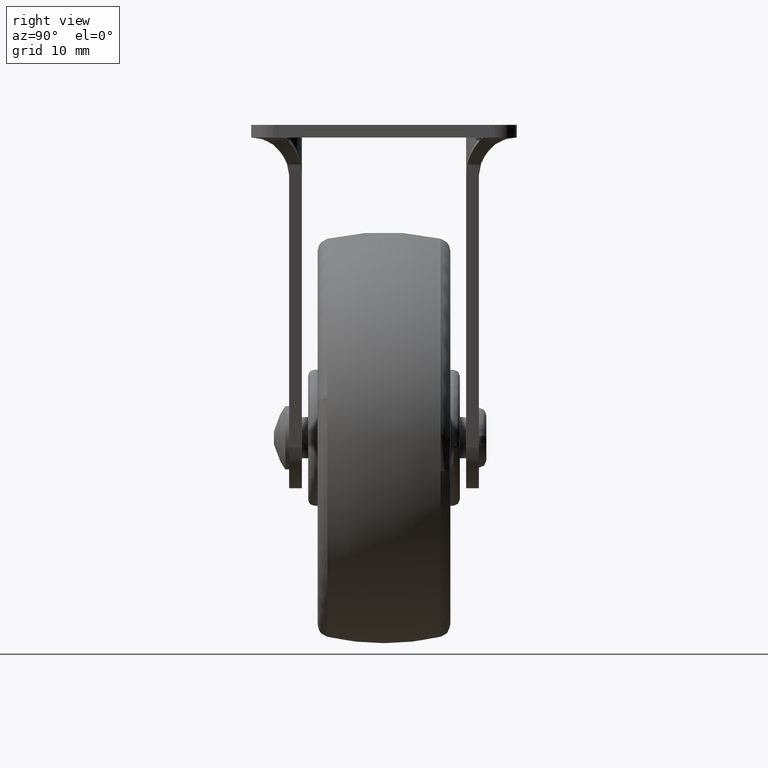
[diagram: clean part render]
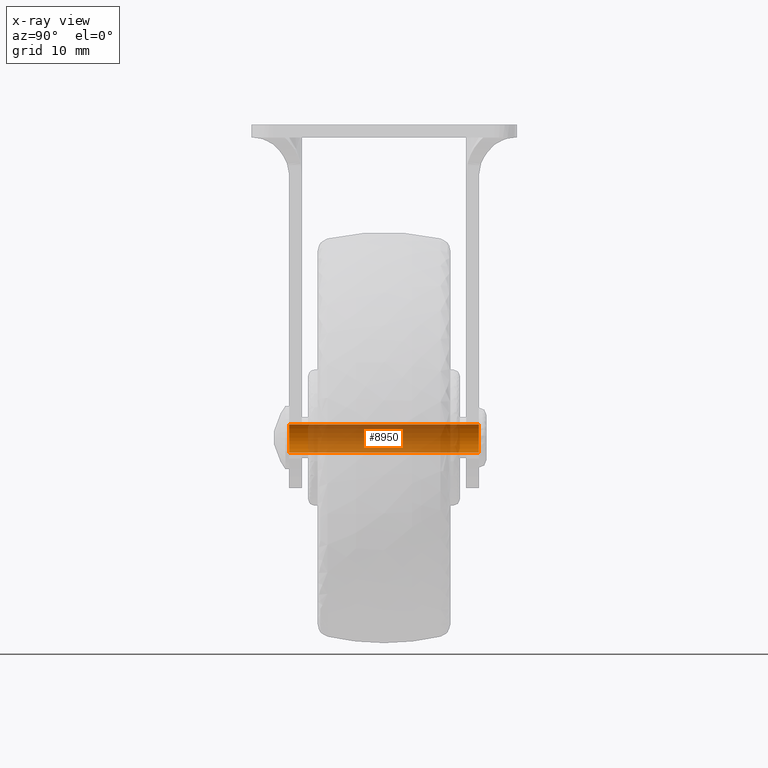
[diagram: x-ray — body ghosted, one internal face saturated and labeled with its STEP entity id]
A machine part, right view, then the same camera in x-ray: the body is ghosted and one INTERNAL B-rep face — a face not visible from any outside direction — is saturated and labeled: STEP entity #8950.
In plain terms, the highlighted face is a freeform B-spline surface patch.
Its self-contained STEP definition (entity closure, byte-faithful):
#8773=CARTESIAN_POINT('',(-2.481556180200195,15.000000000000581,2.098661789956101));
#8774=VERTEX_POINT('',#8773);
#8786=CARTESIAN_POINT('',(-2.481556179435675,-15.0,2.098661790860105));
#8787=VERTEX_POINT('',#8786);
#8788=CARTESIAN_POINT('',(-2.481556179435675,-15.0,2.098661790860105));
#8789=CARTESIAN_POINT('',(-2.481556180200195,15.000000000000581,2.098661789956101));
#8790=QUASI_UNIFORM_CURVE('',1,(#8788,#8789),.UNSPECIFIED.,.F.,.U.);
#8791=EDGE_CURVE('',#8787,#8774,#8790,.T.);
#8833=CARTESIAN_POINT('',(-2.237152049560076,-15.0,-2.357466498763380));
#8834=VERTEX_POINT('',#8833);
#8844=CARTESIAN_POINT('',(-2.237152048761399,14.999999999999520,-2.357466499521295));
#8845=VERTEX_POINT('',#8844);
#8846=CARTESIAN_POINT('',(-2.237152049560076,-15.0,-2.357466498763380));
#8847=CARTESIAN_POINT('',(-2.237152048761399,14.999999999999520,-2.357466499521295));
#8848=QUASI_UNIFORM_CURVE('',1,(#8846,#8847),.UNSPECIFIED.,.F.,.U.);
#8849=EDGE_CURVE('',#8834,#8845,#8848,.T.);
#8891=CARTESIAN_POINT('',(-2.237152371004624,-15.750000000000000,-2.357466705789857));
#8892=CARTESIAN_POINT('',(-4.463434164068824,-15.750000000000000,-0.244804168649463));
#8893=CARTESIAN_POINT('',(-2.481555839556425,-15.750000000000005,2.098661624741507));
#8894=CARTESIAN_POINT('',(-2.237152371004624,15.768750000000001,-2.357466705789857));
#8895=CARTESIAN_POINT('',(-4.463434164068824,15.768750000000002,-0.244804168649463));
#8896=CARTESIAN_POINT('',(-2.481555839556425,15.768750000000006,2.098661624741507));
#8904=(BOUNDED_SURFACE()B_SPLINE_SURFACE(2,1,((#8891,#8894),(#8892,#8895),(#8893,#8896)),.UNSPECIFIED.,.F.,.F.,.U.)B_SPLINE_SURFACE_WITH_KNOTS((3,3),(2,2),(0.0,5.167966565803392),(0.0,31.518750000000001),.UNSPECIFIED.)GEOMETRIC_REPRESENTATION_ITEM()RATIONAL_B_SPLINE_SURFACE(((1.0,1.0),(0.718822509939086,0.718822509939086),(0.977505800795127,0.977505800795127)))REPRESENTATION_ITEM('')SURFACE());
#8905=CARTESIAN_POINT('',(-3.249999999999549,15.0,0.000001487796942));
#8906=VERTEX_POINT('',#8905);
#8907=CARTESIAN_POINT('',(-3.249999999999549,15.0,0.000001487796942));
#8908=CARTESIAN_POINT('',(-3.250060649914170,15.000000000000060,0.261427682322324));
#8909=CARTESIAN_POINT('',(-3.200971036355242,15.000000000000210,0.665402282813494));
#8910=CARTESIAN_POINT('',(-2.970593696103428,15.000000000000361,1.391912184477895));
#8911=CARTESIAN_POINT('',(-2.711962775218276,15.000000000000520,1.826593926802095));
#8912=CARTESIAN_POINT('',(-2.481556180200195,15.000000000000581,2.098661789956101));
#8913=B_SPLINE_CURVE_WITH_KNOTS('',3,(#8907,#8908,#8909,#8910,#8911,#8912),.UNSPECIFIED.,.F.,.U.,(4,1,1,4),(0.000000010974642,0.784275109219710,1.212061011984385,2.281527074555774),.UNSPECIFIED.);
#8914=EDGE_CURVE('',#8906,#8774,#8913,.T.);
#8915=ORIENTED_EDGE('',*,*,#8914,.F.);
#8916=CARTESIAN_POINT('',(-2.237152048761399,14.999999999999520,-2.357466499521295));
#8917=CARTESIAN_POINT('',(-2.386640298020275,14.999999999999559,-2.215634704212071));
#8918=CARTESIAN_POINT('',(-2.667574218512066,14.999999999999609,-1.893002076730780));
#8919=CARTESIAN_POINT('',(-2.969426538478281,14.999999999999741,-1.365720265530212));
#8920=CARTESIAN_POINT('',(-3.192150937357401,14.999999999999840,-0.728051425299172));
#8921=CARTESIAN_POINT('',(-3.250071790372573,14.999999999999980,-0.274761042236194));
#8922=CARTESIAN_POINT('',(-3.249999999999549,15.0,0.000001487796942));
#8923=B_SPLINE_CURVE_WITH_KNOTS('',3,(#8916,#8917,#8918,#8919,#8920,#8921,#8922),.UNSPECIFIED.,.F.,.U.,(4,1,1,1,4),(0.000000030441559,0.618198176669700,1.277627678639759,1.813380992617025,2.637647932575103),.UNSPECIFIED.);
#8924=EDGE_CURVE('',#8845,#8906,#8923,.T.);
#8925=ORIENTED_EDGE('',*,*,#8924,.F.);
#8926=ORIENTED_EDGE('',*,*,#8849,.F.);
#8927=CARTESIAN_POINT('',(-3.249999999999549,-15.0,0.000001487796942));
#8928=VERTEX_POINT('',#8927);
#8929=CARTESIAN_POINT('',(-2.237152049560076,-15.0,-2.357466498763380));
#8930=CARTESIAN_POINT('',(-2.456474722291819,-15.000000000000011,-2.149503491196748));
#8931=CARTESIAN_POINT('',(-2.810415551291515,-15.0,-1.704337600644214));
#8932=CARTESIAN_POINT('',(-3.165183214025850,-15.000000000000030,-0.892883893320777));
#8933=CARTESIAN_POINT('',(-3.250139103721481,-14.999999999999980,-0.315984424998066));
#8934=CARTESIAN_POINT('',(-3.249999999999549,-15.0,0.000001487796942));
#8935=B_SPLINE_CURVE_WITH_KNOTS('',3,(#8929,#8930,#8931,#8932,#8933,#8934),.UNSPECIFIED.,.F.,.U.,(4,1,1,4),(0.000000030441304,0.906693037131408,1.689735800036456,2.637647931474029),.UNSPECIFIED.);
#8936=EDGE_CURVE('',#8834,#8928,#8935,.T.);
#8937=ORIENTED_EDGE('',*,*,#8936,.T.);
#8938=CARTESIAN_POINT('',(-3.249999999999549,-15.0,0.000001487796942));
#8939=CARTESIAN_POINT('',(-3.250240429008738,-14.999999999999989,0.356523851753599));
#8940=CARTESIAN_POINT('',(-3.167032557084585,-15.000000000000030,0.855436827051896));
#8941=CARTESIAN_POINT('',(-2.873794300711696,-14.999999999999980,1.558930977972459));
#8942=CARTESIAN_POINT('',(-2.650418262191678,-15.000000000000020,1.899087125748252));
#8943=CARTESIAN_POINT('',(-2.481556179435675,-15.0,2.098661790860105));
#8944=B_SPLINE_CURVE_WITH_KNOTS('',3,(#8938,#8939,#8940,#8941,#8942,#8943),.UNSPECIFIED.,.F.,.U.,(4,1,1,4),(0.000000010974631,1.069466074064731,1.497251977072743,2.281527075739785),.UNSPECIFIED.);
#8945=EDGE_CURVE('',#8928,#8787,#8944,.T.);
#8946=ORIENTED_EDGE('',*,*,#8945,.T.);
#8947=ORIENTED_EDGE('',*,*,#8791,.T.);
#8948=EDGE_LOOP('',(#8915,#8925,#8926,#8937,#8946,#8947));
#8949=FACE_OUTER_BOUND('',#8948,.T.);
#8950=ADVANCED_FACE('',(#8949),#8904,.T.);